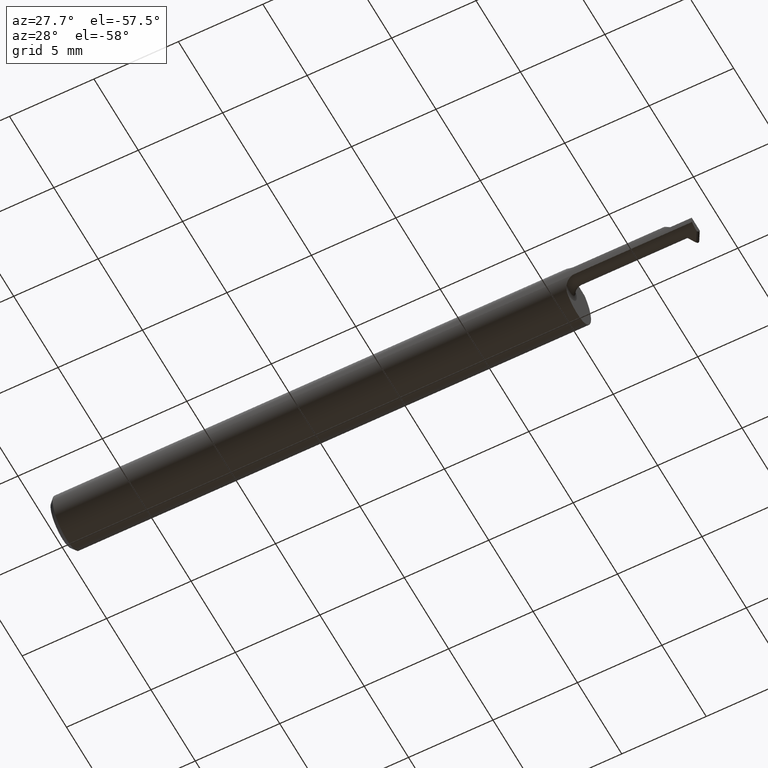
[diagram: clean part render]
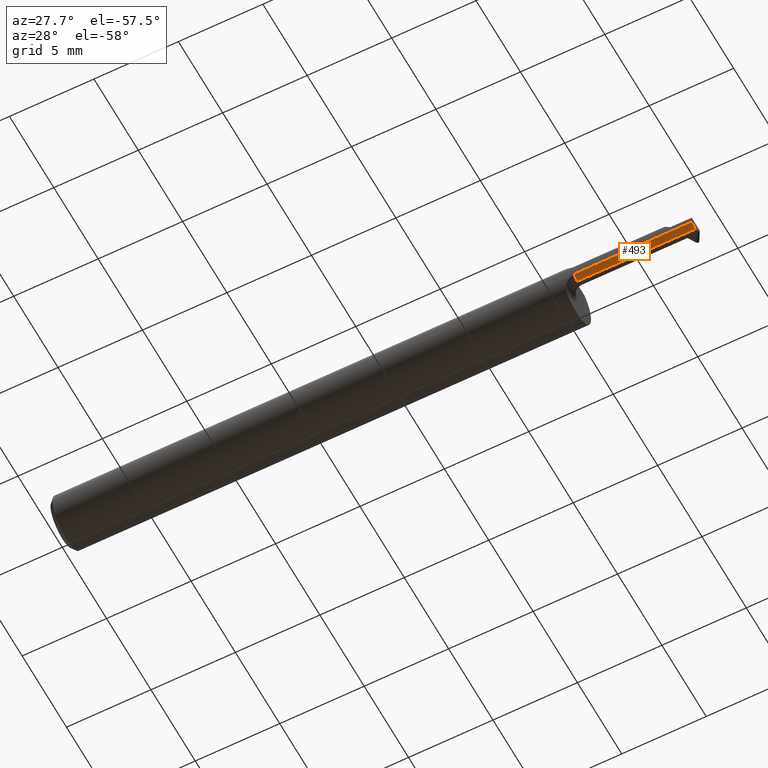
[diagram: same view with one face highlighted and labeled with its STEP entity id]
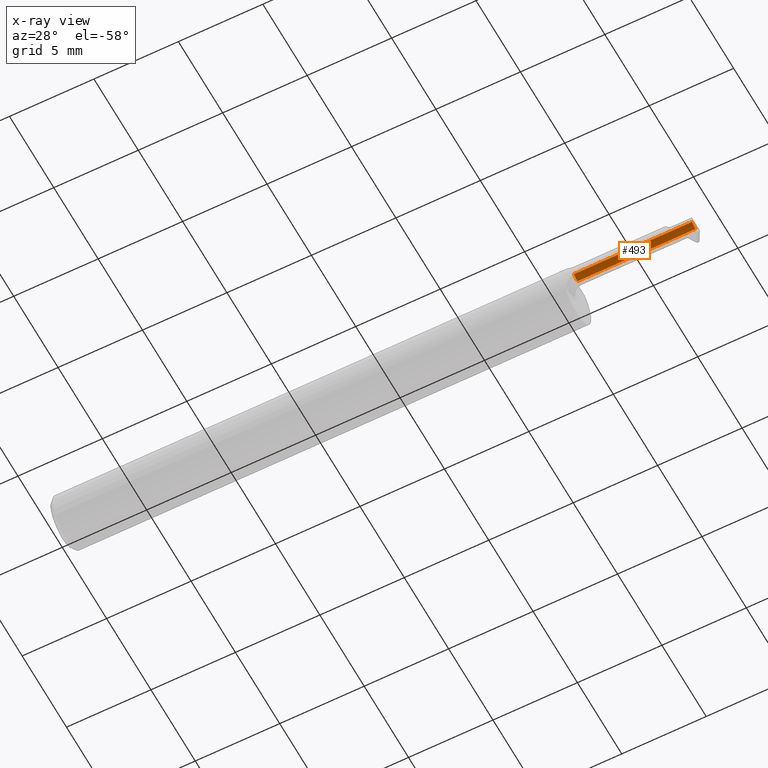
[diagram: x-ray of the same camera — body ghosted, the highlighted face saturated]
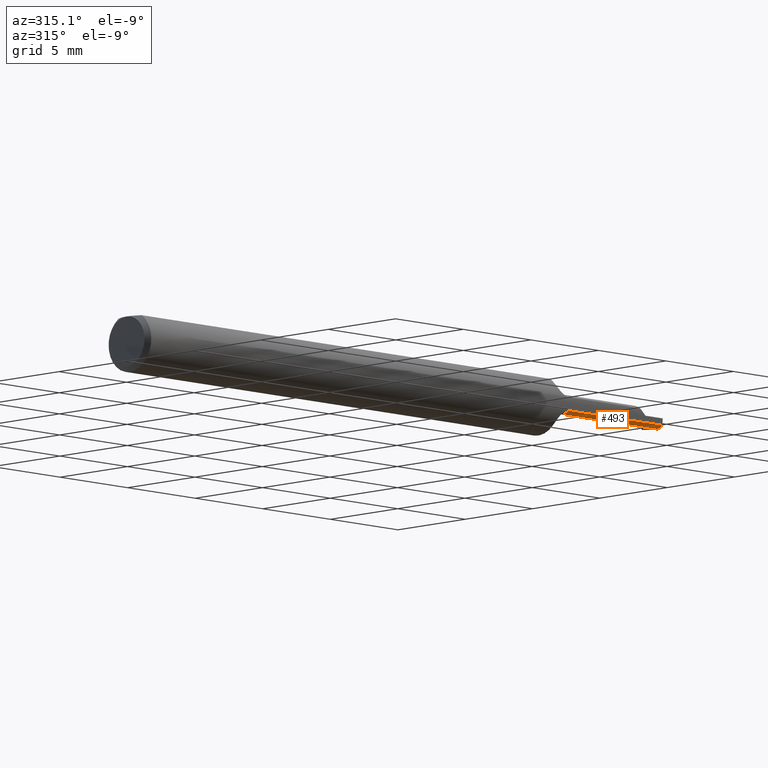
[diagram: same view with one face highlighted and labeled with its STEP entity id]
A machine part, auxiliary view. The second image highlights one B-rep face of the part: STEP entity #493.
The next image is the same camera in x-ray: the body ghosted, the highlighted face saturated — about 0% of this face is hidden behind the body in this view.
A second angle (auxiliary view) of the same face is appended — the face is thin or edge-on in the first view.
In plain terms, the highlighted cylindrical surface (edge-blend (fillet) strip) has radius 0.5207 mm, axis along (-1, -0, -0).
Its self-contained STEP definition (entity closure, byte-faithful):
#12 = VERTEX_POINT ( 'NONE', #287 ) ;
#20 = CARTESIAN_POINT ( 'NONE',  ( 1.500000000000000222, -0.04585000000000002962, 0.000000000000000000 ) ) ;
#34 = EDGE_CURVE ( 'NONE', #706, #73, #618, .T. ) ;
#47 = EDGE_CURVE ( 'NONE', #706, #507, #789, .T. ) ;
#73 = VERTEX_POINT ( 'NONE', #480 ) ;
#134 = LINE ( 'NONE', #189, #700 ) ;
#150 = EDGE_LOOP ( 'NONE', ( #592, #211, #324, #390, #669 ) ) ;
#152 = DIRECTION ( 'NONE',  ( -1.000000000000000000, -0.000000000000000000, -0.000000000000000000 ) ) ;
#189 = CARTESIAN_POINT ( 'NONE',  ( 1.671951421547187788, -0.04585000000000002962, -0.02050000000000002168 ) ) ;
#193 = DIRECTION ( 'NONE',  ( -1.000000000000000000, -0.000000000000000000, -0.000000000000000000 ) ) ;
#211 = ORIENTED_EDGE ( 'NONE', *, *, #317, .F. ) ;
#213 = DIRECTION ( 'NONE',  ( -1.000000000000000000, -0.000000000000000000, -0.000000000000000000 ) ) ;
#232 = CYLINDRICAL_SURFACE ( 'NONE', #275, 0.02050000000000004596 ) ;
#275 = AXIS2_PLACEMENT_3D ( 'NONE', #307, #293, #298 ) ;
#277 = DIRECTION ( 'NONE',  ( 1.000000000000000000, 0.000000000000000000, 0.000000000000000000 ) ) ;
#287 = CARTESIAN_POINT ( 'NONE',  ( 1.475581018059172633, -0.04585000000000002962, -0.02050000000000003555 ) ) ;
#288 = EDGE_CURVE ( 'NONE', #467, #507, #381, .T. ) ;
#293 = DIRECTION ( 'NONE',  ( -1.000000000000000000, -0.000000000000000000, -0.000000000000000000 ) ) ;
#298 = DIRECTION ( 'NONE',  ( 0.000000000000000000, 0.000000000000000000, 1.000000000000000000 ) ) ;
#307 = CARTESIAN_POINT ( 'NONE',  ( 1.200000000000000178, -0.04585000000000002962, 0.000000000000000000 ) ) ;
#309 = VECTOR ( 'NONE', #152, 39.37007874015748143 ) ;
#317 = EDGE_CURVE ( 'NONE', #73, #12, #134, .T. ) ;
#318 = DIRECTION ( 'NONE',  ( -1.000000000000000000, -0.000000000000000000, -0.000000000000000000 ) ) ;
#324 = ORIENTED_EDGE ( 'NONE', *, *, #34, .F. ) ;
#331 = CARTESIAN_POINT ( 'NONE',  ( 1.225000000000000089, -0.04585000000000002962, 0.000000000000000000 ) ) ;
#381 = CIRCLE ( 'NONE', #593, 0.02050000000000005984 ) ;
#390 = ORIENTED_EDGE ( 'NONE', *, *, #47, .T. ) ;
#409 = DIRECTION ( 'NONE',  ( 0.000000000000000000, 0.000000000000000000, 1.000000000000000000 ) ) ;
#411 = EDGE_CURVE ( 'NONE', #12, #467, #728, .T. ) ;
#421 = CARTESIAN_POINT ( 'NONE',  ( 1.225000000000000089, -0.06073604143947652217, -0.01409452979925869022 ) ) ;
#441 = FACE_OUTER_BOUND ( 'NONE', #150, .T. ) ;
#461 = AXIS2_PLACEMENT_3D ( 'NONE', #20, #277, #409 ) ;
#467 = VERTEX_POINT ( 'NONE', #614 ) ;
#480 = CARTESIAN_POINT ( 'NONE',  ( 1.500000000000000222, -0.04585000000000002962, -0.02050000000000002168 ) ) ;
#486 = VECTOR ( 'NONE', #213, 39.37007874015748143 ) ;
#493 = ADVANCED_FACE ( 'NONE', ( #441 ), #232, .T. ) ;
#507 = VERTEX_POINT ( 'NONE', #421 ) ;
#579 = DIRECTION ( 'NONE',  ( 0.000000000000000000, 0.000000000000000000, 1.000000000000000000 ) ) ;
#592 = ORIENTED_EDGE ( 'NONE', *, *, #411, .F. ) ;
#593 = AXIS2_PLACEMENT_3D ( 'NONE', #331, #318, #579 ) ;
#600 = CARTESIAN_POINT ( 'NONE',  ( 1.348475710773594072, -0.06073604143947650830, -0.01409452979925867808 ) ) ;
#614 = CARTESIAN_POINT ( 'NONE',  ( 1.225000000000000089, -0.04585000000000002268, -0.02050000000000005984 ) ) ;
#618 = CIRCLE ( 'NONE', #461, 0.02050000000000002168 ) ;
#633 = CARTESIAN_POINT ( 'NONE',  ( 1.500000000000000222, -0.06073604143947641809, -0.01409452979925866940 ) ) ;
#658 = CARTESIAN_POINT ( 'NONE',  ( 1.200000000000000178, -0.04585000000000002962, -0.02050000000000004596 ) ) ;
#669 = ORIENTED_EDGE ( 'NONE', *, *, #288, .F. ) ;
#700 = VECTOR ( 'NONE', #193, 39.37007874015748143 ) ;
#706 = VERTEX_POINT ( 'NONE', #633 ) ;
#728 = LINE ( 'NONE', #658, #309 ) ;
#789 = LINE ( 'NONE', #600, #486 ) ;